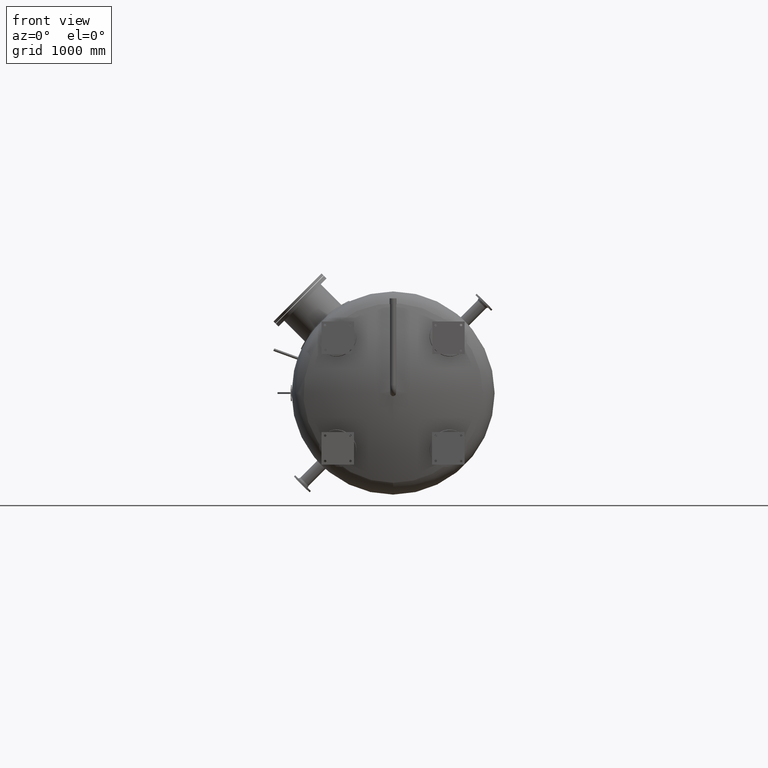
[diagram: clean part render]
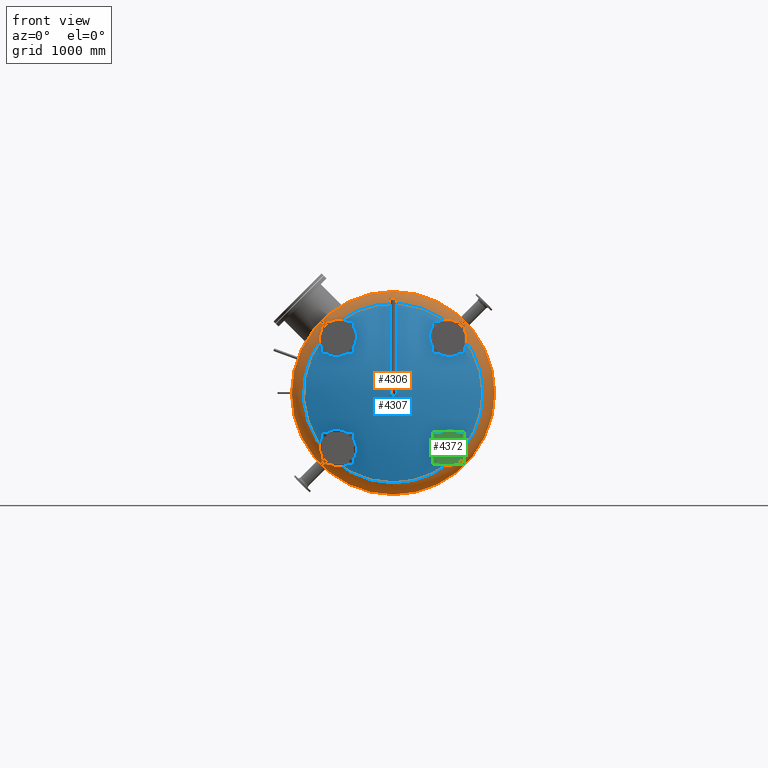
[diagram: same view with three faces highlighted in distinct colors, each labeled with its STEP entity id]
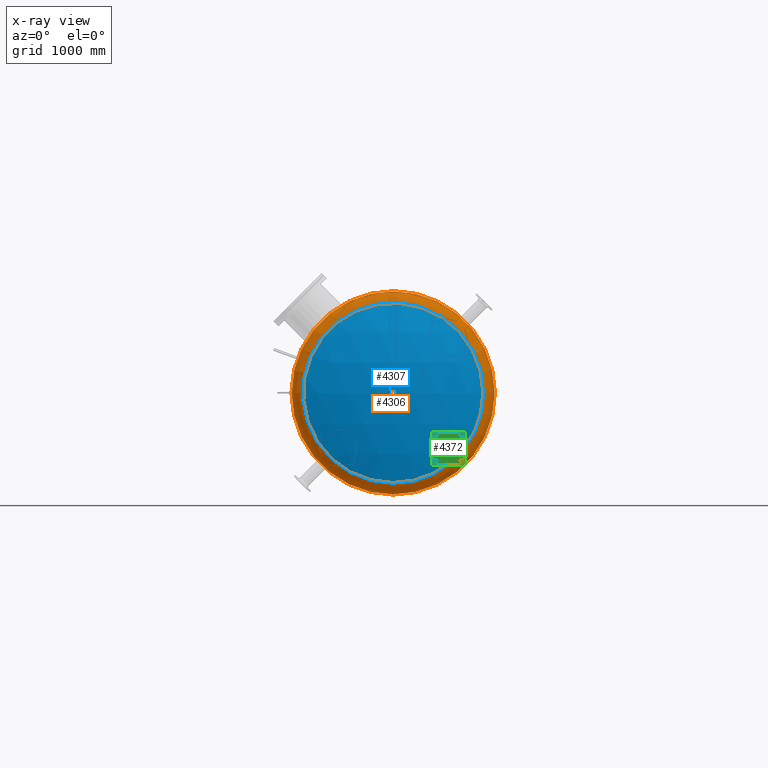
[diagram: x-ray of the same camera — body ghosted, the three highlighted faces saturated]
A machine part, front view with three faces highlighted in distinct colors.
The next image is the same camera in x-ray (body ghosted, the three faces saturated) — at least one of them is partly hidden behind the body in this view.
Their STEP definitions:

[orange] entity #4306 — the highlighted toroidal blend (fillet) surface has major radius 792.2 mm and minor (blend) radius 207.8 mm.
#584=TOROIDAL_SURFACE('',#4993,792.2,207.8);
#594=FACE_OUTER_BOUND('',#828,.T.);
#828=EDGE_LOOP('',(#2946,#2947,#2948,#2949,#2950,#2951,#2952));
#1691=CIRCLE('',#4994,883.655088888889);
#1692=CIRCLE('',#4995,883.655088888889);
#1693=CIRCLE('',#4996,207.8);
#1694=CIRCLE('',#4997,1000.);
#1695=CIRCLE('',#4998,1000.);
#1696=CIRCLE('',#4999,1000.);
#1964=VERTEX_POINT('',#6944);
#1965=VERTEX_POINT('',#6945);
#1966=VERTEX_POINT('',#6948);
#1967=VERTEX_POINT('',#6950);
#1968=VERTEX_POINT('',#6952);
#2366=EDGE_CURVE('',#1964,#1965,#1691,.T.);
#2367=EDGE_CURVE('',#1965,#1964,#1692,.T.);
#2368=EDGE_CURVE('',#1965,#1966,#1693,.T.);
#2369=EDGE_CURVE('',#1966,#1967,#1694,.T.);
#2370=EDGE_CURVE('',#1967,#1968,#1695,.T.);
#2371=EDGE_CURVE('',#1968,#1966,#1696,.T.);
#2946=ORIENTED_EDGE('',*,*,#2366,.F.);
#2947=ORIENTED_EDGE('',*,*,#2367,.F.);
#2948=ORIENTED_EDGE('',*,*,#2368,.T.);
#2949=ORIENTED_EDGE('',*,*,#2369,.T.);
#2950=ORIENTED_EDGE('',*,*,#2370,.T.);
#2951=ORIENTED_EDGE('',*,*,#2371,.T.);
#2952=ORIENTED_EDGE('',*,*,#2368,.F.);
#4306=ADVANCED_FACE('',(#594),#584,.T.);
#4993=AXIS2_PLACEMENT_3D('',#6943,#5572,#5573);
#4994=AXIS2_PLACEMENT_3D('',#6946,#5574,#5575);
#4995=AXIS2_PLACEMENT_3D('',#6947,#5576,#5577);
#4996=AXIS2_PLACEMENT_3D('',#6949,#5578,#5579);
#4997=AXIS2_PLACEMENT_3D('',#6951,#5580,#5581);
#4998=AXIS2_PLACEMENT_3D('',#6953,#5582,#5583);
#4999=AXIS2_PLACEMENT_3D('',#6954,#5584,#5585);
#5572=DIRECTION('center_axis',(-5.38848631719391E-16,1.,0.));
#5573=DIRECTION('ref_axis',(0.,0.,1.));
#5574=DIRECTION('center_axis',(-5.38848631719391E-16,1.,0.));
#5575=DIRECTION('ref_axis',(-1.,-5.38848479725296E-16,0.));
#5576=DIRECTION('center_axis',(-5.38848631719391E-16,1.,0.));
#5577=DIRECTION('ref_axis',(-1.,-5.38848479725296E-16,0.));
#5578=DIRECTION('center_axis',(-1.,-5.38848631719391E-16,1.22464679914735E-16));
#5579=DIRECTION('ref_axis',(-1.22464679914735E-16,0.,-1.));
#5580=DIRECTION('center_axis',(-5.38848631719391E-16,1.,0.));
#5581=DIRECTION('ref_axis',(-1.,-5.38848479725296E-16,0.));
#5582=DIRECTION('center_axis',(-5.38848631719391E-16,1.,0.));
#5583=DIRECTION('ref_axis',(-1.,-5.38848479725296E-16,0.));
#5584=DIRECTION('center_axis',(-5.38848631719391E-16,1.,0.));
#5585=DIRECTION('ref_axis',(-1.,-5.38848479725296E-16,0.));
#6943=CARTESIAN_POINT('Origin',(0.,30.9489799529541,0.));
#6944=CARTESIAN_POINT('',(-883.655088888889,217.5416023053,0.));
#6945=CARTESIAN_POINT('',(-2.087617168593E-13,217.541602305301,-883.655088888889));
#6946=CARTESIAN_POINT('Origin',(-9.94584263502524E-14,217.541602305301,
0.));
#6947=CARTESIAN_POINT('Origin',(-9.94584263502524E-14,217.541602305301,
0.));
#6948=CARTESIAN_POINT('',(-1.22464679914735E-13,30.9489799529542,-1000.));
#6949=CARTESIAN_POINT('Origin',(-9.70165194284533E-14,30.9489799529541,
-792.2));
#6950=CARTESIAN_POINT('',(-1000.,30.9489799529536,0.));
#6951=CARTESIAN_POINT('Origin',(1.08675289324242E-15,30.9489799529542,0.));
#6952=CARTESIAN_POINT('',(1000.,30.9489799529547,-1.22464679914735E-13));
#6953=CARTESIAN_POINT('Origin',(1.08675289324242E-15,30.9489799529542,0.));
#6954=CARTESIAN_POINT('Origin',(1.08675289324242E-15,30.9489799529542,0.));

[blue] entity #4307 — the highlighted spherical surface has radius 2007.8 mm.
#405=FACE_BOUND('',#830,.T.);
#577=SPHERICAL_SURFACE('',#5000,2007.8);
#595=FACE_OUTER_BOUND('',#829,.T.);
#829=EDGE_LOOP('',(#2953,#2954));
#830=EDGE_LOOP('',(#2955));
#1689=CIRCLE('',#4991,30.15);
#1691=CIRCLE('',#4994,883.655088888889);
#1692=CIRCLE('',#4995,883.655088888889);
#1962=VERTEX_POINT('',#6938);
#1964=VERTEX_POINT('',#6944);
#1965=VERTEX_POINT('',#6945);
#2363=EDGE_CURVE('',#1962,#1962,#1689,.T.);
#2366=EDGE_CURVE('',#1964,#1965,#1691,.T.);
#2367=EDGE_CURVE('',#1965,#1964,#1692,.T.);
#2953=ORIENTED_EDGE('',*,*,#2366,.T.);
#2954=ORIENTED_EDGE('',*,*,#2367,.T.);
#2955=ORIENTED_EDGE('',*,*,#2363,.T.);
#4307=ADVANCED_FACE('',(#595,#405),#577,.T.);
#4991=AXIS2_PLACEMENT_3D('',#6939,#5567,#5568);
#4994=AXIS2_PLACEMENT_3D('',#6946,#5574,#5575);
#4995=AXIS2_PLACEMENT_3D('',#6947,#5576,#5577);
#5000=AXIS2_PLACEMENT_3D('',#6955,#5586,#5587);
#5567=DIRECTION('center_axis',(0.,-1.,0.));
#5568=DIRECTION('ref_axis',(1.,0.,0.));
#5574=DIRECTION('center_axis',(-5.38848631719391E-16,1.,0.));
#5575=DIRECTION('ref_axis',(-1.,-5.38848479725296E-16,0.));
#5576=DIRECTION('center_axis',(-5.38848631719391E-16,1.,0.));
#5577=DIRECTION('ref_axis',(-1.,-5.38848479725296E-16,0.));
#5586=DIRECTION('center_axis',(6.12323399573677E-17,0.,1.));
#5587=DIRECTION('ref_axis',(1.,0.,0.));
#6938=CARTESIAN_POINT('',(-30.15,422.22461446598,-3.69231009942927E-15));
#6939=CARTESIAN_POINT('Origin',(0.,422.22461446598,0.));
#6944=CARTESIAN_POINT('',(-883.655088888889,217.5416023053,0.));
#6945=CARTESIAN_POINT('',(-2.087617168593E-13,217.541602305301,-883.655088888889));
#6946=CARTESIAN_POINT('Origin',(-9.94584263502524E-14,217.541602305301,
0.));
#6947=CARTESIAN_POINT('Origin',(-9.94584263502524E-14,217.541602305301,
0.));
#6955=CARTESIAN_POINT('Origin',(8.72026707841707E-13,-1585.349,0.));

[green] entity #4372 — the highlighted planar face has unit normal (-0, -1, 0).
#337=PLANE('',#5117);
#435=FACE_BOUND('',#925,.T.);
#436=FACE_BOUND('',#926,.T.);
#437=FACE_BOUND('',#927,.T.);
#438=FACE_BOUND('',#928,.T.);
#660=FACE_OUTER_BOUND('',#924,.T.);
#924=EDGE_LOOP('',(#3302,#3303,#3304,#3305));
#925=EDGE_LOOP('',(#3306));
#926=EDGE_LOOP('',(#3307));
#927=EDGE_LOOP('',(#3308));
#928=EDGE_LOOP('',(#3309));
#1286=LINE('',#9302,#1514);
#1290=LINE('',#9310,#1518);
#1293=LINE('',#9316,#1521);
#1296=LINE('',#9321,#1524);
#1514=VECTOR('',#5866,10.);
#1518=VECTOR('',#5872,10.);
#1521=VECTOR('',#5877,10.);
#1524=VECTOR('',#5882,10.);
#1739=CIRCLE('',#5103,12.);
#1741=CIRCLE('',#5106,12.);
#1743=CIRCLE('',#5109,12.);
#1745=CIRCLE('',#5112,12.);
#2084=VERTEX_POINT('',#9278);
#2086=VERTEX_POINT('',#9284);
#2088=VERTEX_POINT('',#9290);
#2090=VERTEX_POINT('',#9296);
#2091=VERTEX_POINT('',#9300);
#2092=VERTEX_POINT('',#9301);
#2095=VERTEX_POINT('',#9309);
#2097=VERTEX_POINT('',#9315);
#2529=EDGE_CURVE('',#2084,#2084,#1739,.T.);
#2532=EDGE_CURVE('',#2086,#2086,#1741,.T.);
#2535=EDGE_CURVE('',#2088,#2088,#1743,.T.);
#2538=EDGE_CURVE('',#2090,#2090,#1745,.T.);
#2539=EDGE_CURVE('',#2091,#2092,#1286,.T.);
#2543=EDGE_CURVE('',#2092,#2095,#1290,.T.);
#2546=EDGE_CURVE('',#2095,#2097,#1293,.T.);
#2549=EDGE_CURVE('',#2097,#2091,#1296,.T.);
#3302=ORIENTED_EDGE('',*,*,#2539,.F.);
#3303=ORIENTED_EDGE('',*,*,#2549,.F.);
#3304=ORIENTED_EDGE('',*,*,#2546,.F.);
#3305=ORIENTED_EDGE('',*,*,#2543,.F.);
#3306=ORIENTED_EDGE('',*,*,#2529,.T.);
#3307=ORIENTED_EDGE('',*,*,#2532,.T.);
#3308=ORIENTED_EDGE('',*,*,#2535,.T.);
#3309=ORIENTED_EDGE('',*,*,#2538,.T.);
#4372=ADVANCED_FACE('',(#660,#435,#436,#437,#438),#337,.T.);
#5103=AXIS2_PLACEMENT_3D('',#9280,#5841,#5842);
#5106=AXIS2_PLACEMENT_3D('',#9286,#5848,#5849);
#5109=AXIS2_PLACEMENT_3D('',#9292,#5855,#5856);
#5112=AXIS2_PLACEMENT_3D('',#9298,#5862,#5863);
#5117=AXIS2_PLACEMENT_3D('',#9323,#5884,#5885);
#5841=DIRECTION('center_axis',(-4.65074712779551E-30,-1.,1.76610650422614E-31));
#5842=DIRECTION('ref_axis',(1.,0.,0.));
#5848=DIRECTION('center_axis',(-4.65074712779551E-30,-1.,1.76610650422614E-31));
#5849=DIRECTION('ref_axis',(1.,0.,0.));
#5855=DIRECTION('center_axis',(-4.65074712779551E-30,-1.,1.76610650422614E-31));
#5856=DIRECTION('ref_axis',(1.,0.,0.));
#5862=DIRECTION('center_axis',(-4.65074712779551E-30,-1.,1.76610650422614E-31));
#5863=DIRECTION('ref_axis',(1.,0.,0.));
#5866=DIRECTION('',(-0.707106781186548,0.,0.707106781186547));
#5872=DIRECTION('',(-0.707106781186548,0.,-0.707106781186547));
#5877=DIRECTION('',(0.707106781186548,0.,-0.707106781186548));
#5882=DIRECTION('',(0.707106781186548,0.,0.707106781186547));
#5884=DIRECTION('center_axis',(4.65074712779551E-30,1.,-1.76610650422614E-31));
#5885=DIRECTION('ref_axis',(0.,1.76610650422614E-31,1.));
#9278=CARTESIAN_POINT('',(-605.223304703363,822.451,1.46957615897682E-15));
#9280=CARTESIAN_POINT('Origin',(-593.223304703363,822.451,0.));
#9284=CARTESIAN_POINT('',(-782.,822.451,176.776695296637));
#9286=CARTESIAN_POINT('Origin',(-770.,822.451,176.776695296637));
#9290=CARTESIAN_POINT('',(-958.776695296637,822.451,1.46957615897682E-15));
#9292=CARTESIAN_POINT('Origin',(-946.776695296637,822.451,0.));
#9296=CARTESIAN_POINT('',(-782.,822.451,-176.776695296637));
#9298=CARTESIAN_POINT('Origin',(-770.,822.451,-176.776695296637));
#9300=CARTESIAN_POINT('',(-543.725830020305,822.451,-3.77475828372553E-14));
#9301=CARTESIAN_POINT('',(-770.,822.451,226.274169979695));
#9302=CARTESIAN_POINT('',(-543.725830020305,822.451,-3.77475828372553E-14));
#9309=CARTESIAN_POINT('',(-996.274169979695,822.451,4.42547251404697E-14));
#9310=CARTESIAN_POINT('',(-770.,822.451,226.274169979695));
#9315=CARTESIAN_POINT('',(-770.,822.451,-226.274169979695));
#9316=CARTESIAN_POINT('',(-996.274169979695,822.451,4.42547251404697E-14));
#9321=CARTESIAN_POINT('',(-770.,822.451,-226.274169979695));
#9323=CARTESIAN_POINT('Origin',(-770.,822.451,-3.10862446895044E-14));